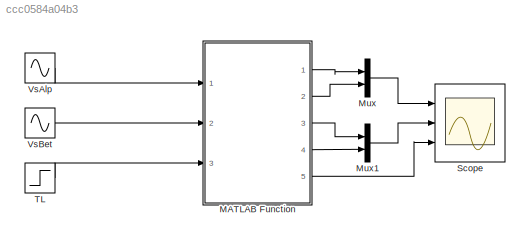
MODEL slx_ccc0584a04b3
KIND model
CONFIG AbsTol = auto
CONFIG EnableMultiTasking = off
CONFIG FixedStep = T
CONFIG MaxStep = auto
CONFIG MinStep = auto
CONFIG RelTol = 1e-3
CONFIG SampleTimeConstraint = Unconstrained
CONFIG Solver = FixedStepAuto
CONFIG SolverName = FixedStepAuto
CONFIG StartTime = 0.0
CONFIG StopTime = 100
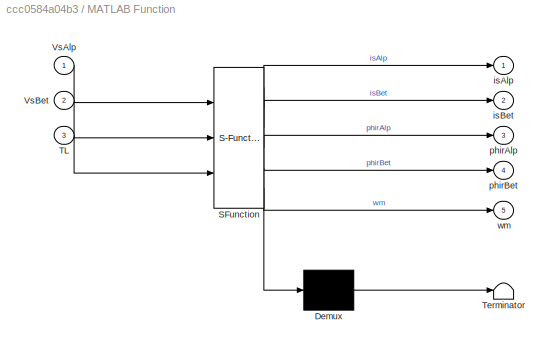
BLOCK [SubSystem] MATLAB Function
  ErrorFcn = Stateflow.Translate.translate
  PermitHierarchicalResolution = ExplicitOnly
  Ports = [3, 5]
  RequestExecContextInheritance = off
  SFBlockType = MATLAB Function
  TreatAsAtomicUnit = on
BLOCK [Demux] MATLAB Function/ Demux 
  Outputs = 1
  Ports = [1, 1]
BLOCK [S-Function] MATLAB Function/ SFunction 
  EnableBusSupport = on
  FunctionName = sf_sfun
  Parameters = Bt,Jt,Lm,Lr,Lsigma,Pp,Rr,Rs,T
  PortCounts = [3 6]
  Ports = [3, 6]
  SFcnIsStateOwnerBlock = off
  SFunctionDeploymentMode = off
  Tag = Stateflow S-Function func 2
BLOCK [Terminator] MATLAB Function/ Terminator 
BLOCK [Inport] MATLAB Function/TL
  IconDisplay = Port number
  Port = 3
BLOCK [Inport] MATLAB Function/VsAlp
  IconDisplay = Port number
BLOCK [Inport] MATLAB Function/VsBet
  IconDisplay = Port number
  Port = 2
BLOCK [Outport] MATLAB Function/isAlp
  IconDisplay = Port number
BLOCK [Outport] MATLAB Function/isBet
  IconDisplay = Port number
  Port = 2
BLOCK [Outport] MATLAB Function/phirAlp
  IconDisplay = Port number
  Port = 3
BLOCK [Outport] MATLAB Function/phirBet
  IconDisplay = Port number
  Port = 4
BLOCK [Outport] MATLAB Function/wm
  IconDisplay = Port number
  Port = 5
BLOCK [Mux] Mux
  DisplayOption = bar
  Inputs = 2
  Ports = [2, 1]
BLOCK [Mux] Mux1
  DisplayOption = bar
  Inputs = 2
  Ports = [2, 1]
BLOCK [Scope] Scope
  Floating = off
  NumInputPorts = 3
  Ports = [3]
  ScopeSpecificationString = Simulink.scopes.TimeScopeBlockCfg('CurrentConfiguration', extmgr.ConfigurationSet(extmgr.Configuration('Core','General UI',true),extmgr.Configuration('Core','Source UI',true),extmgr.Configuration('Sources','WiredSimulink',true),extmgr.Configuration('Visuals','Time Domain',true,'SerializedDisplays',{struct('MinYLimReal','-56003601947646878109097791855830022237028740565302560904263230386338614361621...<+5888ch>
BLOCK [Step] TL
  After = 20
  SampleTime = 0
BLOCK [Sin] VsAlp 
  Amplitude = V_amp
  Frequency = we
  Phase = pi/2
  Ports = [0, 1]
  SampleTime = 0
BLOCK [Sin] VsBet 
  Amplitude = V_amp
  Frequency = we
  Ports = [0, 1]
  SampleTime = 0
LINE MATLAB Function:1 -> Mux:1
LINE MATLAB Function:2 -> Mux:2
LINE MATLAB Function:3 -> Mux1:1
LINE MATLAB Function:4 -> Mux1:2
LINE MATLAB Function:5 -> Scope:3
LINE Mux1:1 -> Scope:2
LINE Mux:1 -> Scope:1
LINE TL:1 -> MATLAB Function:3
LINE VsAlp :1 -> MATLAB Function:1
LINE VsBet :1 -> MATLAB Function:2
CHART MATLAB Function states=1 transitions=1
  STATE_LABEL 'eML_blk_kernel()'
  STATE_LABEL 'SCRIPT:\n\nfunction [isAlp, isBet, phirAlp, phirBet,wm] = IMmodel(VsAlp, VsBet,TL, Rs, Lsigma, Rr, Lm, Lr, Bt, Jt, T, Pp)\n\npersistent IsAlp IsBet PhirAlp PhirBet Wm\n\nif isempty(IsAlp)\nIsAlp=0;\nIsBet =0;\nPhirAlp = 0;\nPhirBet =0;\nWm = 0;\nend\n\nisAlp = (1-(Rs/Lsigma+Lm^2*Rr/(Lsigma*Lr^2))*T)*IsAlp + Lm *Rr*T*PhirAlp /(Lsigma* Lr^2) + Lm+Pp*Wm* T* PhirBet/(Lsigma*Lr) + T*VsAlp/ Lsigma;\n\nisBet = (1-(Rs/Ls...<+437ch>'
